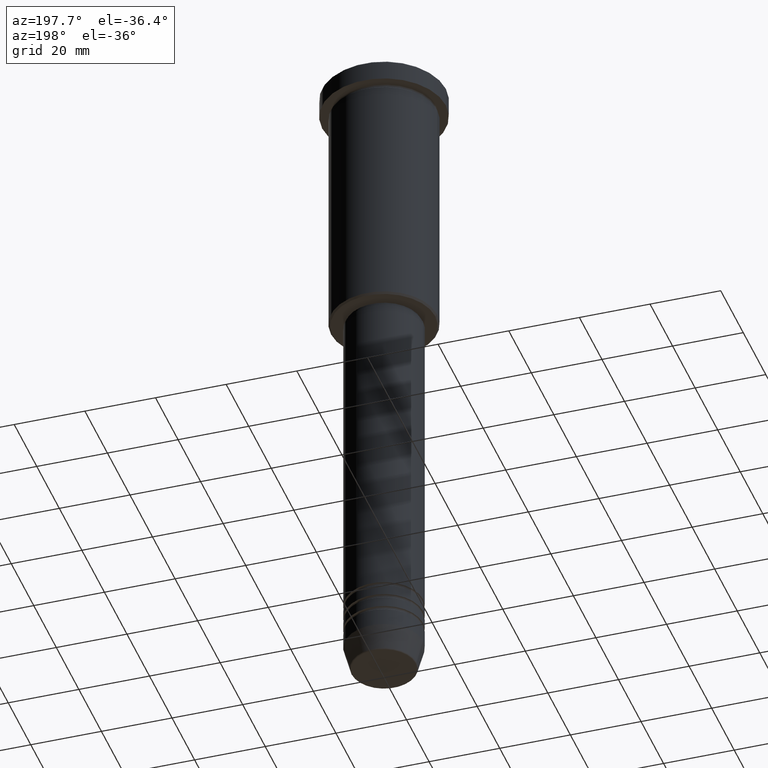
[diagram: clean part render]
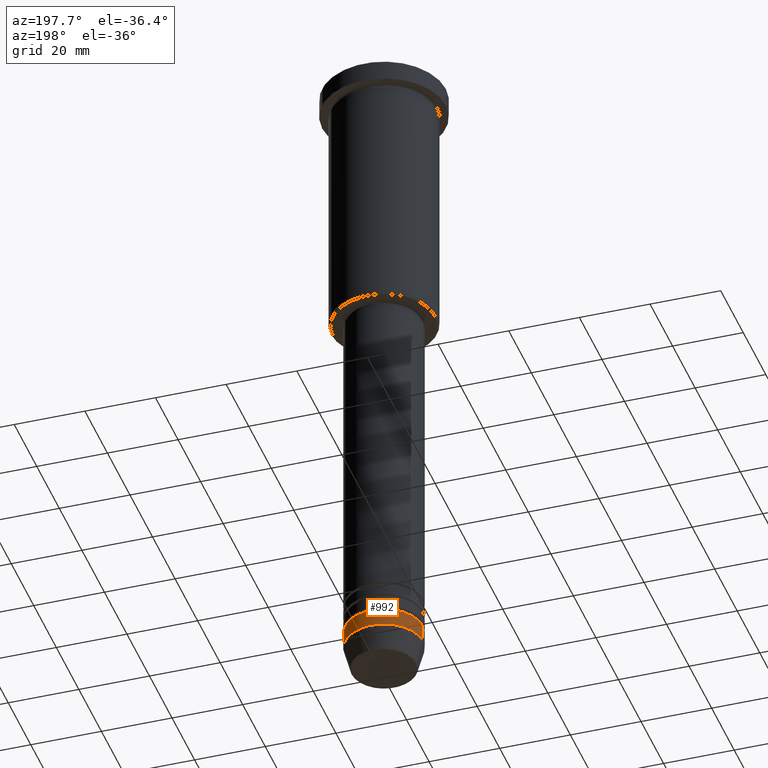
[diagram: same view with one face highlighted and labeled with its STEP entity id]
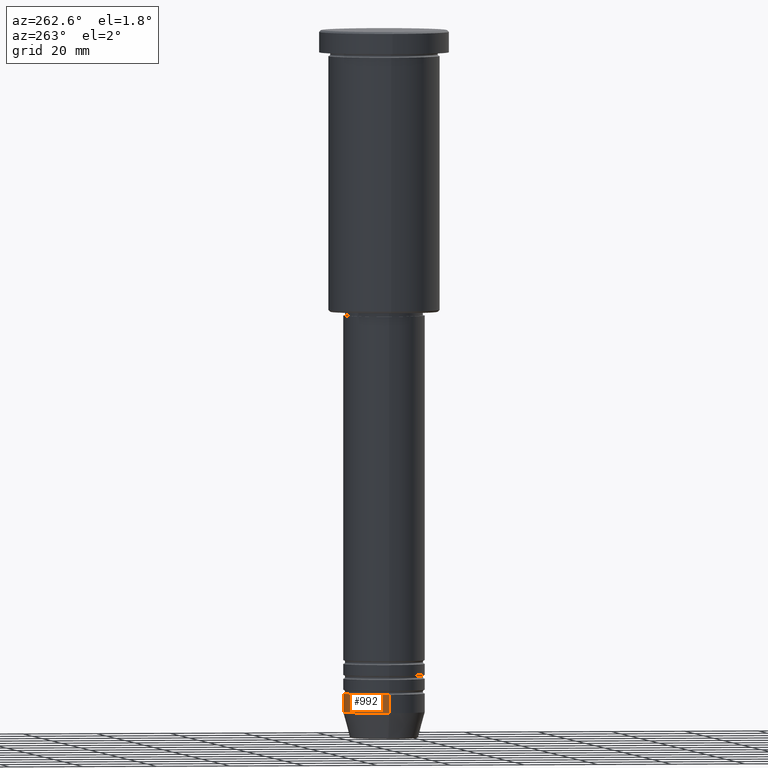
[diagram: same view with one face highlighted and labeled with its STEP entity id]
A machine part, auxiliary view. The second image highlights one B-rep face of the part: STEP entity #992.
A second angle (auxiliary view) of the same face is appended — the face is thin or edge-on in the first view.
In plain terms, the highlighted cylindrical surface (partial cylindrical patch) has radius 11 mm, axis along (-0, -0, 1).
Its self-contained STEP definition (entity closure, byte-faithful):
#14 = DIRECTION ( 'NONE',  ( 1.000000000000000000, 0.000000000000000000, 0.000000000000000000 ) ) ;
#40 = DIRECTION ( 'NONE',  ( -0.000000000000000000, -0.000000000000000000, 1.000000000000000000 ) ) ;
#48 = CIRCLE ( 'NONE', #505, 11.00000000000000000 ) ;
#87 = VERTEX_POINT ( 'NONE', #212 ) ;
#149 = EDGE_CURVE ( 'NONE', #996, #624, #271, .T. ) ;
#151 = DIRECTION ( 'NONE',  ( -0.000000000000000000, -0.000000000000000000, 1.000000000000000000 ) ) ;
#165 = CARTESIAN_POINT ( 'NONE',  ( 0.000000000000000000, 0.000000000000000000, -179.0000000000000284 ) ) ;
#212 = CARTESIAN_POINT ( 'NONE',  ( -11.00000000000000000, 1.347111479062088405E-15, -179.0000000000000284 ) ) ;
#271 = LINE ( 'NONE', #345, #446 ) ;
#293 = AXIS2_PLACEMENT_3D ( 'NONE', #841, #40, #416 ) ;
#295 = CARTESIAN_POINT ( 'NONE',  ( -11.00000000000000000, 1.347111479062088405E-15, 0.000000000000000000 ) ) ;
#319 = AXIS2_PLACEMENT_3D ( 'NONE', #165, #534, #14 ) ;
#345 = CARTESIAN_POINT ( 'NONE',  ( 11.00000000000000000, 0.000000000000000000, 0.000000000000000000 ) ) ;
#378 = ORIENTED_EDGE ( 'NONE', *, *, #1011, .T. ) ;
#406 = CARTESIAN_POINT ( 'NONE',  ( 11.00000000000000000, 0.000000000000000000, -179.0000000000000284 ) ) ;
#416 = DIRECTION ( 'NONE',  ( 1.000000000000000000, 0.000000000000000000, 0.000000000000000000 ) ) ;
#446 = VECTOR ( 'NONE', #1081, 1000.000000000000000 ) ;
#487 = CIRCLE ( 'NONE', #319, 11.00000000000000000 ) ;
#505 = AXIS2_PLACEMENT_3D ( 'NONE', #1148, #151, #513 ) ;
#513 = DIRECTION ( 'NONE',  ( 1.000000000000000000, 0.000000000000000000, 0.000000000000000000 ) ) ;
#534 = DIRECTION ( 'NONE',  ( -0.000000000000000000, -0.000000000000000000, 1.000000000000000000 ) ) ;
#585 = CARTESIAN_POINT ( 'NONE',  ( 11.00000000000000000, 0.000000000000000000, -184.0000000000000000 ) ) ;
#597 = CARTESIAN_POINT ( 'NONE',  ( -11.00000000000000000, 1.347111479062088405E-15, -184.0000000000000000 ) ) ;
#624 = VERTEX_POINT ( 'NONE', #406 ) ;
#646 = ORIENTED_EDGE ( 'NONE', *, *, #149, .F. ) ;
#690 = ORIENTED_EDGE ( 'NONE', *, *, #1089, .F. ) ;
#740 = VERTEX_POINT ( 'NONE', #597 ) ;
#747 = EDGE_LOOP ( 'NONE', ( #1132, #378, #690, #646 ) ) ;
#782 = DIRECTION ( 'NONE',  ( -0.000000000000000000, -0.000000000000000000, 1.000000000000000000 ) ) ;
#799 = EDGE_CURVE ( 'NONE', #996, #740, #48, .T. ) ;
#841 = CARTESIAN_POINT ( 'NONE',  ( 0.000000000000000000, 0.000000000000000000, 0.000000000000000000 ) ) ;
#948 = CYLINDRICAL_SURFACE ( 'NONE', #293, 11.00000000000000000 ) ;
#992 = ADVANCED_FACE ( 'NONE', ( #993 ), #948, .T. ) ;
#993 = FACE_OUTER_BOUND ( 'NONE', #747, .T. ) ;
#996 = VERTEX_POINT ( 'NONE', #585 ) ;
#1011 = EDGE_CURVE ( 'NONE', #740, #87, #1130, .T. ) ;
#1047 = VECTOR ( 'NONE', #782, 1000.000000000000000 ) ;
#1081 = DIRECTION ( 'NONE',  ( -0.000000000000000000, -0.000000000000000000, 1.000000000000000000 ) ) ;
#1089 = EDGE_CURVE ( 'NONE', #624, #87, #487, .T. ) ;
#1130 = LINE ( 'NONE', #295, #1047 ) ;
#1132 = ORIENTED_EDGE ( 'NONE', *, *, #799, .T. ) ;
#1148 = CARTESIAN_POINT ( 'NONE',  ( 0.000000000000000000, 0.000000000000000000, -184.0000000000000000 ) ) ;